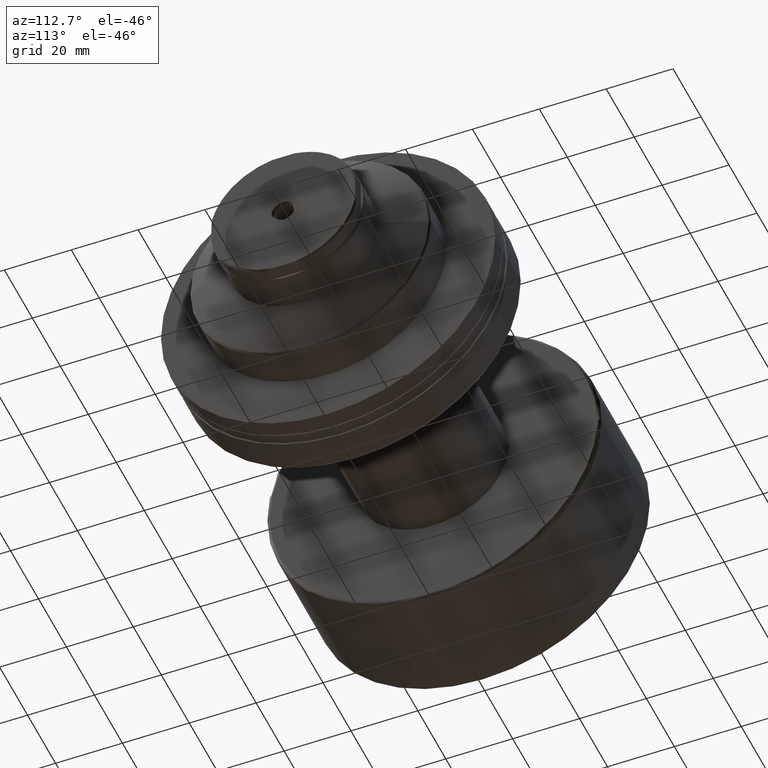
[diagram: clean part render]
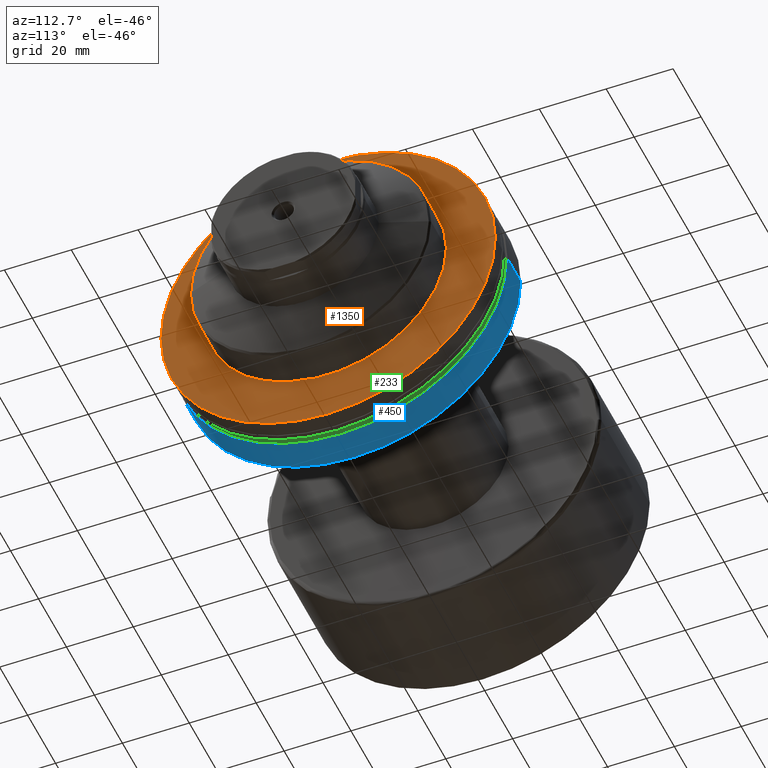
[diagram: same view with three faces highlighted in distinct colors, each labeled with its STEP entity id]
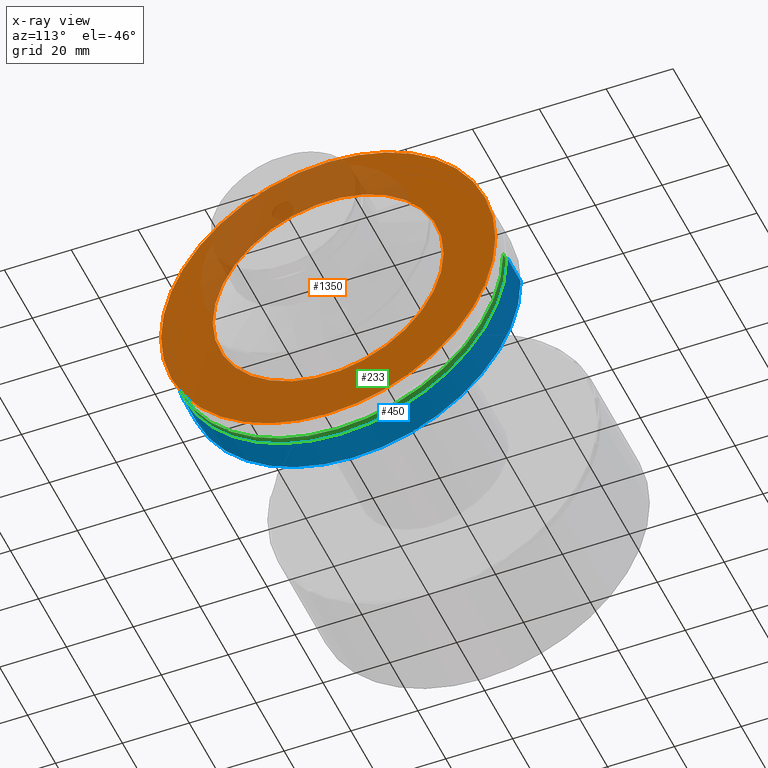
[diagram: x-ray of the same camera — body ghosted, the three highlighted faces saturated]
A machine part, auxiliary view with three faces highlighted in distinct colors.
The next image is the same camera in x-ray (body ghosted, the three faces saturated) — at least one of them is partly hidden behind the body in this view.
Their STEP definitions:

[orange] entity #1350 — the highlighted planar face has unit normal (-1, -0, 0).
#71 = CARTESIAN_POINT ( 'NONE',  ( -26.00000000000002842, 50.00000000000000000, 0.000000000000000000 ) ) ;
#131 = EDGE_CURVE ( 'NONE', #1676, #1592, #1875, .T. ) ;
#329 = CARTESIAN_POINT ( 'NONE',  ( -26.00000000000000355, -34.50000000000068923, 4.316879966994462093E-15 ) ) ;
#432 = CARTESIAN_POINT ( 'NONE',  ( -26.00000000000001776, 34.50000000000068923, 0.000000000000000000 ) ) ;
#445 = DIRECTION ( 'NONE',  ( -2.011273595335388390E-16, 1.000000000000000000, 0.000000000000000000 ) ) ;
#464 = ORIENTED_EDGE ( 'NONE', *, *, #1097, .F. ) ;
#534 = CIRCLE ( 'NONE', #1250, 34.50000000000068923 ) ;
#574 = AXIS2_PLACEMENT_3D ( 'NONE', #2007, #1482, #2044 ) ;
#638 = EDGE_CURVE ( 'NONE', #1592, #1676, #834, .T. ) ;
#648 = DIRECTION ( 'NONE',  ( -2.011273595335388390E-16, 1.000000000000000000, 0.000000000000000000 ) ) ;
#667 = CARTESIAN_POINT ( 'NONE',  ( -26.00000000000000355, -50.00000000000000000, 6.123233995736766085E-15 ) ) ;
#721 = AXIS2_PLACEMENT_3D ( 'NONE', #1409, #1376, #1211 ) ;
#789 = CARTESIAN_POINT ( 'NONE',  ( -26.00000000000001066, 1.063763213834975669E-15, 0.000000000000000000 ) ) ;
#834 = CIRCLE ( 'NONE', #721, 50.00000000000000000 ) ;
#984 = FACE_BOUND ( 'NONE', #1604, .T. ) ;
#1024 = AXIS2_PLACEMENT_3D ( 'NONE', #789, #1863, #445 ) ;
#1082 = VERTEX_POINT ( 'NONE', #432 ) ;
#1097 = EDGE_CURVE ( 'NONE', #1513, #1082, #534, .T. ) ;
#1101 = CARTESIAN_POINT ( 'NONE',  ( -26.00000000000001776, 1.063763213834974881E-15, 0.000000000000000000 ) ) ;
#1211 = DIRECTION ( 'NONE',  ( -2.775557561562891351E-16, 1.000000000000000000, 0.000000000000000000 ) ) ;
#1248 = ORIENTED_EDGE ( 'NONE', *, *, #638, .T. ) ;
#1250 = AXIS2_PLACEMENT_3D ( 'NONE', #1578, #1558, #648 ) ;
#1300 = EDGE_LOOP ( 'NONE', ( #1442, #1248 ) ) ;
#1350 = ADVANCED_FACE ( 'NONE', ( #984, #1870 ), #1511, .F. ) ;
#1376 = DIRECTION ( 'NONE',  ( 1.000000000000000000, 2.485414848852932351E-16, -0.000000000000000000 ) ) ;
#1404 = EDGE_CURVE ( 'NONE', #1082, #1513, #1735, .T. ) ;
#1409 = CARTESIAN_POINT ( 'NONE',  ( -26.00000000000001776, 1.063763213834974881E-15, 0.000000000000000000 ) ) ;
#1410 = DIRECTION ( 'NONE',  ( 1.000000000000000000, 2.485414848852932351E-16, -0.000000000000000000 ) ) ;
#1442 = ORIENTED_EDGE ( 'NONE', *, *, #131, .T. ) ;
#1482 = DIRECTION ( 'NONE',  ( -1.000000000000000000, -2.485414848852932351E-16, 0.000000000000000000 ) ) ;
#1511 = PLANE ( 'NONE',  #574 ) ;
#1513 = VERTEX_POINT ( 'NONE', #329 ) ;
#1558 = DIRECTION ( 'NONE',  ( 1.000000000000000000, 2.485414848852932351E-16, -0.000000000000000000 ) ) ;
#1578 = CARTESIAN_POINT ( 'NONE',  ( -26.00000000000001066, 1.063763213834975669E-15, 0.000000000000000000 ) ) ;
#1592 = VERTEX_POINT ( 'NONE', #667 ) ;
#1604 = EDGE_LOOP ( 'NONE', ( #1994, #464 ) ) ;
#1676 = VERTEX_POINT ( 'NONE', #71 ) ;
#1731 = AXIS2_PLACEMENT_3D ( 'NONE', #1101, #1410, #1945 ) ;
#1735 = CIRCLE ( 'NONE', #1024, 34.50000000000068923 ) ;
#1863 = DIRECTION ( 'NONE',  ( 1.000000000000000000, 2.485414848852932351E-16, -0.000000000000000000 ) ) ;
#1870 = FACE_OUTER_BOUND ( 'NONE', #1300, .T. ) ;
#1875 = CIRCLE ( 'NONE', #1731, 50.00000000000000000 ) ;
#1945 = DIRECTION ( 'NONE',  ( -2.775557561562891351E-16, 1.000000000000000000, 0.000000000000000000 ) ) ;
#1994 = ORIENTED_EDGE ( 'NONE', *, *, #1404, .F. ) ;
#2007 = CARTESIAN_POINT ( 'NONE',  ( -26.00000000000000000, -50.00000000000000000, 0.000000000000000000 ) ) ;
#2044 = DIRECTION ( 'NONE',  ( 2.485414848852932351E-16, -1.000000000000000000, 0.000000000000000000 ) ) ;

[blue] entity #450 — the highlighted cylindrical surface (partial cylindrical patch) has radius 50 mm, axis along (1, 0, 0).
#238 = CARTESIAN_POINT ( 'NONE',  ( -30.28002276692732408, 0.000000000000000000, 0.000000000000000000 ) ) ;
#321 = DIRECTION ( 'NONE',  ( -2.775557561562891351E-16, 1.000000000000000000, 0.000000000000000000 ) ) ;
#351 = VECTOR ( 'NONE', #1816, 1000.000000000000000 ) ;
#368 = VERTEX_POINT ( 'NONE', #454 ) ;
#450 = ADVANCED_FACE ( 'NONE', ( #935 ), #1688, .T. ) ;
#454 = CARTESIAN_POINT ( 'NONE',  ( -44.20000000000016627, -50.00000000000000711, 6.123233995736766085E-15 ) ) ;
#483 = CARTESIAN_POINT ( 'NONE',  ( -34.80878161770241519, 50.00000000000000000, 0.000000000000000000 ) ) ;
#616 = AXIS2_PLACEMENT_3D ( 'NONE', #1541, #1885, #321 ) ;
#622 = CARTESIAN_POINT ( 'NONE',  ( -30.28002276692733830, 50.00000000000000000, 0.000000000000000000 ) ) ;
#624 = ORIENTED_EDGE ( 'NONE', *, *, #1432, .T. ) ;
#630 = DIRECTION ( 'NONE',  ( 1.000000000000000000, 2.485414848852932351E-16, -0.000000000000000000 ) ) ;
#674 = VERTEX_POINT ( 'NONE', #1697 ) ;
#759 = AXIS2_PLACEMENT_3D ( 'NONE', #238, #972, #2016 ) ;
#779 = LINE ( 'NONE', #622, #838 ) ;
#819 = CARTESIAN_POINT ( 'NONE',  ( -44.20000000000019469, 49.99999999999999289, 0.000000000000000000 ) ) ;
#838 = VECTOR ( 'NONE', #630, 1000.000000000000000 ) ;
#876 = CIRCLE ( 'NONE', #616, 50.00000000000000000 ) ;
#882 = LINE ( 'NONE', #1801, #351 ) ;
#935 = FACE_OUTER_BOUND ( 'NONE', #1838, .T. ) ;
#936 = DIRECTION ( 'NONE',  ( -2.775557561562891351E-16, 1.000000000000000000, 0.000000000000000000 ) ) ;
#946 = CIRCLE ( 'NONE', #1318, 50.00000000000000000 ) ;
#950 = DIRECTION ( 'NONE',  ( 1.000000000000000000, 2.485414848852932351E-16, -0.000000000000000000 ) ) ;
#972 = DIRECTION ( 'NONE',  ( 1.000000000000000000, 2.485414848852932351E-16, -0.000000000000000000 ) ) ;
#1068 = ORIENTED_EDGE ( 'NONE', *, *, #1255, .F. ) ;
#1073 = VERTEX_POINT ( 'NONE', #819 ) ;
#1255 = EDGE_CURVE ( 'NONE', #368, #674, #882, .T. ) ;
#1318 = AXIS2_PLACEMENT_3D ( 'NONE', #2236, #950, #936 ) ;
#1334 = EDGE_CURVE ( 'NONE', #1073, #1524, #779, .T. ) ;
#1432 = EDGE_CURVE ( 'NONE', #368, #1073, #946, .T. ) ;
#1479 = EDGE_CURVE ( 'NONE', #674, #1524, #876, .T. ) ;
#1524 = VERTEX_POINT ( 'NONE', #483 ) ;
#1541 = CARTESIAN_POINT ( 'NONE',  ( -34.80878161770240098, -1.125584449459051283E-15, 0.000000000000000000 ) ) ;
#1603 = ORIENTED_EDGE ( 'NONE', *, *, #1334, .T. ) ;
#1684 = ORIENTED_EDGE ( 'NONE', *, *, #1479, .F. ) ;
#1688 = CYLINDRICAL_SURFACE ( 'NONE', #759, 50.00000000000000000 ) ;
#1697 = CARTESIAN_POINT ( 'NONE',  ( -34.80878161770238677, -50.00000000000000000, 6.123233995736766085E-15 ) ) ;
#1801 = CARTESIAN_POINT ( 'NONE',  ( -30.28002276692730987, -50.00000000000000000, 6.123233995736766085E-15 ) ) ;
#1816 = DIRECTION ( 'NONE',  ( 1.000000000000000000, 2.485414848852932351E-16, -0.000000000000000000 ) ) ;
#1838 = EDGE_LOOP ( 'NONE', ( #1068, #624, #1603, #1684 ) ) ;
#1885 = DIRECTION ( 'NONE',  ( 1.000000000000000000, 2.485414848852932351E-16, -0.000000000000000000 ) ) ;
#2016 = DIRECTION ( 'NONE',  ( -2.775557561562891351E-16, 1.000000000000000000, 0.000000000000000000 ) ) ;
#2236 = CARTESIAN_POINT ( 'NONE',  ( -44.20000000000018048, -3.459691811077403828E-15, 0.000000000000000000 ) ) ;

[green] entity #233 — the highlighted cylindrical surface (partial cylindrical patch) has radius 49.5 mm, axis along (1, 0, 0).
#67 = EDGE_CURVE ( 'NONE', #2136, #434, #696, .T. ) ;
#117 = EDGE_CURVE ( 'NONE', #2136, #414, #1765, .T. ) ;
#122 = EDGE_CURVE ( 'NONE', #434, #1204, #1952, .T. ) ;
#136 = VECTOR ( 'NONE', #763, 1000.000000000000000 ) ;
#179 = CARTESIAN_POINT ( 'NONE',  ( -32.80000000000002558, -6.263188833850209719E-16, 0.000000000000000000 ) ) ;
#215 = DIRECTION ( 'NONE',  ( 1.000000000000000000, 2.485414848852932351E-16, -0.000000000000000000 ) ) ;
#233 = ADVANCED_FACE ( 'NONE', ( #1506 ), #981, .T. ) ;
#409 = DIRECTION ( 'NONE',  ( 1.000000000000000000, 2.485414848852932351E-16, -0.000000000000000000 ) ) ;
#414 = VERTEX_POINT ( 'NONE', #1188 ) ;
#434 = VERTEX_POINT ( 'NONE', #1645 ) ;
#607 = LINE ( 'NONE', #1644, #136 ) ;
#696 = LINE ( 'NONE', #1633, #1422 ) ;
#715 = DIRECTION ( 'NONE',  ( 1.000000000000000000, 2.485414848852932351E-16, -0.000000000000000000 ) ) ;
#762 = DIRECTION ( 'NONE',  ( -2.803593496528172893E-16, 1.000000000000000000, 0.000000000000000000 ) ) ;
#763 = DIRECTION ( 'NONE',  ( 1.000000000000000000, 2.485414848852932351E-16, -0.000000000000000000 ) ) ;
#883 = ORIENTED_EDGE ( 'NONE', *, *, #117, .T. ) ;
#916 = EDGE_LOOP ( 'NONE', ( #1903, #883, #1556, #1257 ) ) ;
#923 = DIRECTION ( 'NONE',  ( 1.000000000000000000, 2.485414848852932351E-16, -0.000000000000000000 ) ) ;
#941 = AXIS2_PLACEMENT_3D ( 'NONE', #179, #923, #1779 ) ;
#981 = CYLINDRICAL_SURFACE ( 'NONE', #1732, 49.50000000000000000 ) ;
#1188 = CARTESIAN_POINT ( 'NONE',  ( -34.80878161770241519, 49.50000000000000000, 0.000000000000000000 ) ) ;
#1204 = VERTEX_POINT ( 'NONE', #1247 ) ;
#1247 = CARTESIAN_POINT ( 'NONE',  ( -32.80000000000003979, 49.49999999999999289, 0.000000000000000000 ) ) ;
#1257 = ORIENTED_EDGE ( 'NONE', *, *, #122, .F. ) ;
#1422 = VECTOR ( 'NONE', #215, 1000.000000000000000 ) ;
#1506 = FACE_OUTER_BOUND ( 'NONE', #916, .T. ) ;
#1556 = ORIENTED_EDGE ( 'NONE', *, *, #1729, .T. ) ;
#1633 = CARTESIAN_POINT ( 'NONE',  ( -30.28002276692730987, -49.50000000000000000, 6.062001655779398511E-15 ) ) ;
#1644 = CARTESIAN_POINT ( 'NONE',  ( -30.28002276692733830, 49.50000000000000000, 0.000000000000000000 ) ) ;
#1645 = CARTESIAN_POINT ( 'NONE',  ( -32.80000000000001137, -49.49999999999999289, 6.062001655779397722E-15 ) ) ;
#1729 = EDGE_CURVE ( 'NONE', #414, #1204, #607, .T. ) ;
#1732 = AXIS2_PLACEMENT_3D ( 'NONE', #1869, #409, #762 ) ;
#1759 = CARTESIAN_POINT ( 'NONE',  ( -34.80878161770238677, -49.50000000000000000, 6.062001655779398511E-15 ) ) ;
#1765 = CIRCLE ( 'NONE', #2142, 49.50000000000000000 ) ;
#1767 = DIRECTION ( 'NONE',  ( -2.803593496528172893E-16, 1.000000000000000000, 0.000000000000000000 ) ) ;
#1779 = DIRECTION ( 'NONE',  ( -2.803593496528173386E-16, 1.000000000000000000, 0.000000000000000000 ) ) ;
#1869 = CARTESIAN_POINT ( 'NONE',  ( -30.28002276692732408, 0.000000000000000000, 0.000000000000000000 ) ) ;
#1903 = ORIENTED_EDGE ( 'NONE', *, *, #67, .F. ) ;
#1952 = CIRCLE ( 'NONE', #941, 49.49999999999999289 ) ;
#2136 = VERTEX_POINT ( 'NONE', #1759 ) ;
#2142 = AXIS2_PLACEMENT_3D ( 'NONE', #2160, #715, #1767 ) ;
#2160 = CARTESIAN_POINT ( 'NONE',  ( -34.80878161770240098, -1.125584449459051283E-15, 0.000000000000000000 ) ) ;